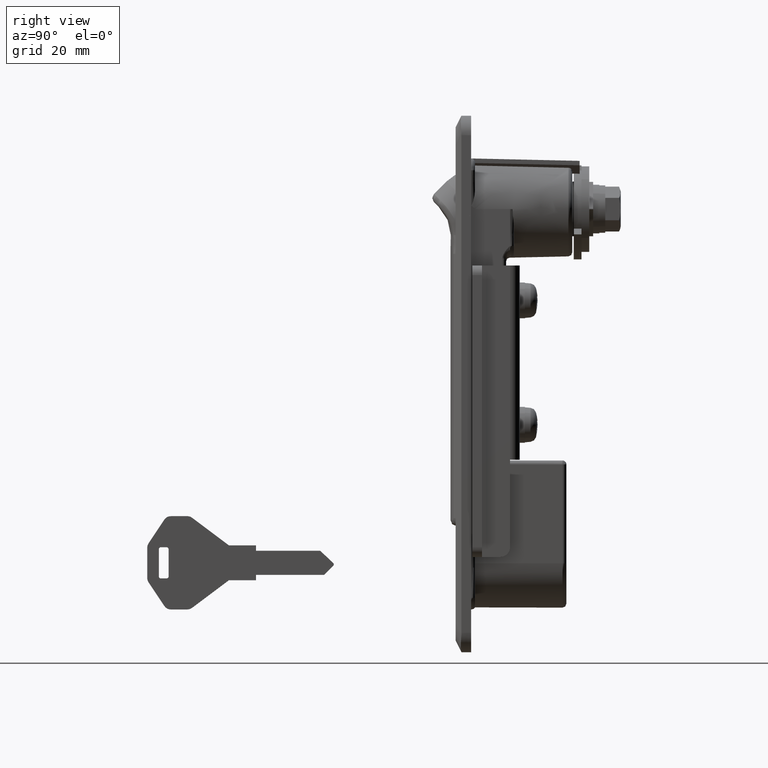
[diagram: clean part render]
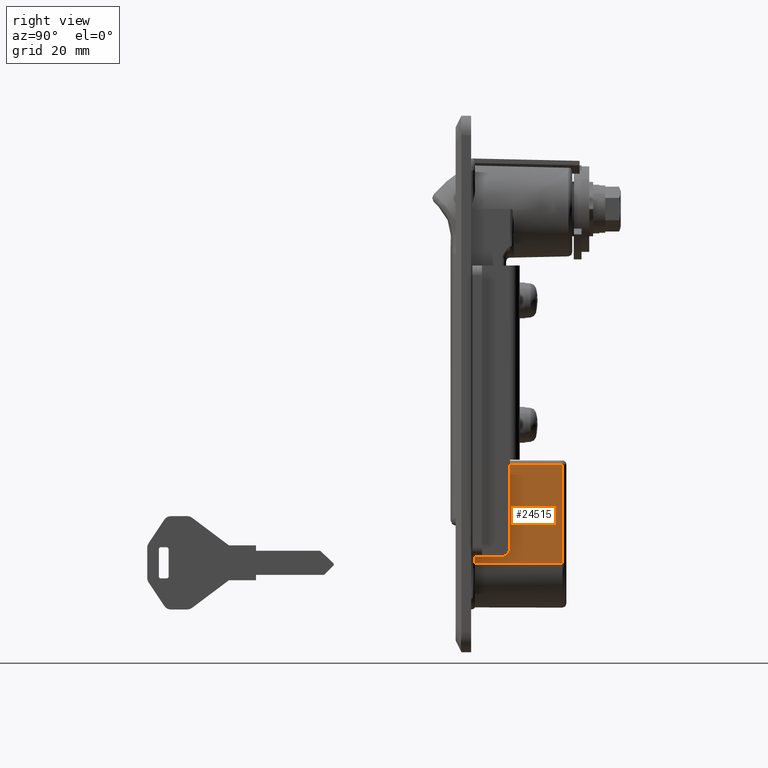
[diagram: same view with one face highlighted and labeled with its STEP entity id]
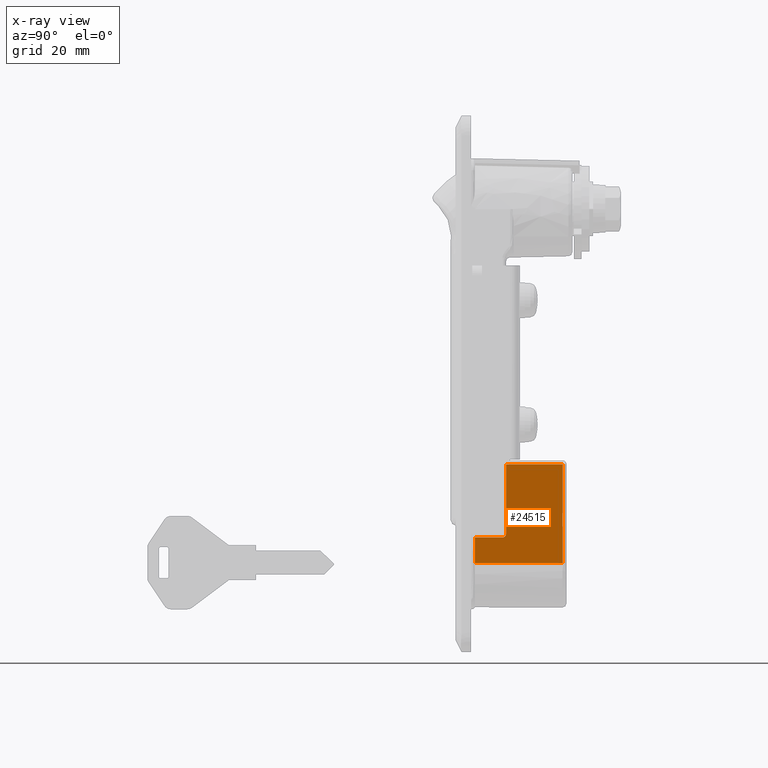
[diagram: x-ray of the same camera — body ghosted, the highlighted face saturated]
A machine part, right view. The second image highlights one B-rep face of the part: STEP entity #24515.
The next image is the same camera in x-ray: the body ghosted, the highlighted face saturated — about 0% of this face is hidden behind the body in this view.
In plain terms, the highlighted face is a freeform B-spline surface patch.
Its self-contained STEP definition (entity closure, byte-faithful):
#19737=CARTESIAN_POINT('',(13.0,-11.648000000000140,-65.668000000000006));
#19738=VERTEX_POINT('',#19737);
#23283=CARTESIAN_POINT('',(13.0,-11.648000000000000,-83.500000000000000));
#23284=VERTEX_POINT('',#23283);
#23291=CARTESIAN_POINT('',(12.0,-11.648000000000000,-84.500000000000000));
#23292=VERTEX_POINT('',#23291);
#23298=CARTESIAN_POINT('',(13.0,-11.648000000000000,-83.500000000000000));
#23299=CARTESIAN_POINT('',(13.000132500863501,-11.648000000000010,-83.630916564449933));
#23300=CARTESIAN_POINT('',(12.947852366808020,-11.648000000000000,-83.892609639809990));
#23301=CARTESIAN_POINT('',(12.716368018953320,-11.648000000000000,-84.239516737476023));
#23302=CARTESIAN_POINT('',(12.376340873681229,-11.648000000000000,-84.454650383606278));
#23303=CARTESIAN_POINT('',(12.114536262939881,-11.648000000000019,-84.500048807725975));
#23304=CARTESIAN_POINT('',(12.0,-11.648000000000000,-84.500000000000000));
#23305=B_SPLINE_CURVE_WITH_KNOTS('',3,(#23298,#23299,#23300,#23301,#23302,#23303,#23304),.UNSPECIFIED.,.F.,.U.,(4,1,1,1,4),(0.000000232514220,0.392740419111709,0.785477253846590,1.227308238452872,1.570953883298339),.UNSPECIFIED.);
#23306=EDGE_CURVE('',#23284,#23292,#23305,.T.);
#23931=CARTESIAN_POINT('',(27.500000000000000,-11.648000000000140,-65.668000000000006));
#23932=VERTEX_POINT('',#23931);
#23983=CARTESIAN_POINT('',(27.500000000000000,-11.648000000000000,-91.127122652352000));
#23984=VERTEX_POINT('',#23983);
#24074=CARTESIAN_POINT('',(27.500000000000000,-11.648000000000000,-91.127122652352000));
#24075=CARTESIAN_POINT('',(27.500000000000000,-11.648000000000140,-65.668000000000006));
#24076=QUASI_UNIFORM_CURVE('',1,(#24074,#24075),.UNSPECIFIED.,.F.,.U.);
#24077=EDGE_CURVE('',#23984,#23932,#24076,.T.);
#24414=CARTESIAN_POINT('',(4.999999999999890,-11.648000000000000,-91.127122652352000));
#24415=VERTEX_POINT('',#24414);
#24416=CARTESIAN_POINT('',(4.999999999999890,-11.648000000000000,-91.127122652352000));
#24417=CARTESIAN_POINT('',(27.500000000000000,-11.648000000000000,-91.127122652352000));
#24418=QUASI_UNIFORM_CURVE('',1,(#24416,#24417),.UNSPECIFIED.,.F.,.U.);
#24419=EDGE_CURVE('',#24415,#23984,#24418,.T.);
#24483=CARTESIAN_POINT('',(3.876125043609251,-11.648000000000000,-64.396316007849492));
#24484=CARTESIAN_POINT('',(3.876125043609251,-11.648000000000000,-92.398804595901865));
#24485=CARTESIAN_POINT('',(28.623875559887669,-11.648000000000000,-64.396316007849492));
#24486=CARTESIAN_POINT('',(28.623875559887669,-11.648000000000000,-92.398804595901865));
#24487=B_SPLINE_SURFACE_WITH_KNOTS('',1,1,((#24483,#24485),(#24484,#24486)),.UNSPECIFIED.,.F.,.F.,.U.,(2,2),(2,2),(0.0,28.002488588052369),(0.0,24.747750516278419),.UNSPECIFIED.);
#24488=ORIENTED_EDGE('',*,*,#24419,.T.);
#24489=ORIENTED_EDGE('',*,*,#24077,.T.);
#24490=CARTESIAN_POINT('',(13.0,-11.648000000000140,-65.668000000000006));
#24491=CARTESIAN_POINT('',(27.500000000000000,-11.648000000000140,-65.668000000000006));
#24492=QUASI_UNIFORM_CURVE('',1,(#24490,#24491),.UNSPECIFIED.,.F.,.U.);
#24493=EDGE_CURVE('',#19738,#23932,#24492,.T.);
#24494=ORIENTED_EDGE('',*,*,#24493,.F.);
#24495=CARTESIAN_POINT('',(13.0,-11.648000000000000,-83.500000000000000));
#24496=CARTESIAN_POINT('',(13.0,-11.648000000000140,-65.668000000000006));
#24497=QUASI_UNIFORM_CURVE('',1,(#24495,#24496),.UNSPECIFIED.,.F.,.U.);
#24498=EDGE_CURVE('',#23284,#19738,#24497,.T.);
#24499=ORIENTED_EDGE('',*,*,#24498,.F.);
#24500=ORIENTED_EDGE('',*,*,#23306,.T.);
#24501=CARTESIAN_POINT('',(4.999999999999920,-11.648000000000140,-84.500000000000000));
#24502=VERTEX_POINT('',#24501);
#24503=CARTESIAN_POINT('',(12.0,-11.648000000000000,-84.500000000000000));
#24504=CARTESIAN_POINT('',(4.999999999999920,-11.648000000000140,-84.500000000000000));
#24505=QUASI_UNIFORM_CURVE('',1,(#24503,#24504),.UNSPECIFIED.,.F.,.U.);
#24506=EDGE_CURVE('',#23292,#24502,#24505,.T.);
#24507=ORIENTED_EDGE('',*,*,#24506,.T.);
#24508=CARTESIAN_POINT('',(4.999999999999920,-11.648000000000140,-84.500000000000000));
#24509=CARTESIAN_POINT('',(4.999999999999890,-11.648000000000000,-91.127122652352000));
#24510=QUASI_UNIFORM_CURVE('',1,(#24508,#24509),.UNSPECIFIED.,.F.,.U.);
#24511=EDGE_CURVE('',#24502,#24415,#24510,.T.);
#24512=ORIENTED_EDGE('',*,*,#24511,.T.);
#24513=EDGE_LOOP('',(#24488,#24489,#24494,#24499,#24500,#24507,#24512));
#24514=FACE_OUTER_BOUND('',#24513,.T.);
#24515=ADVANCED_FACE('',(#24514),#24487,.T.);